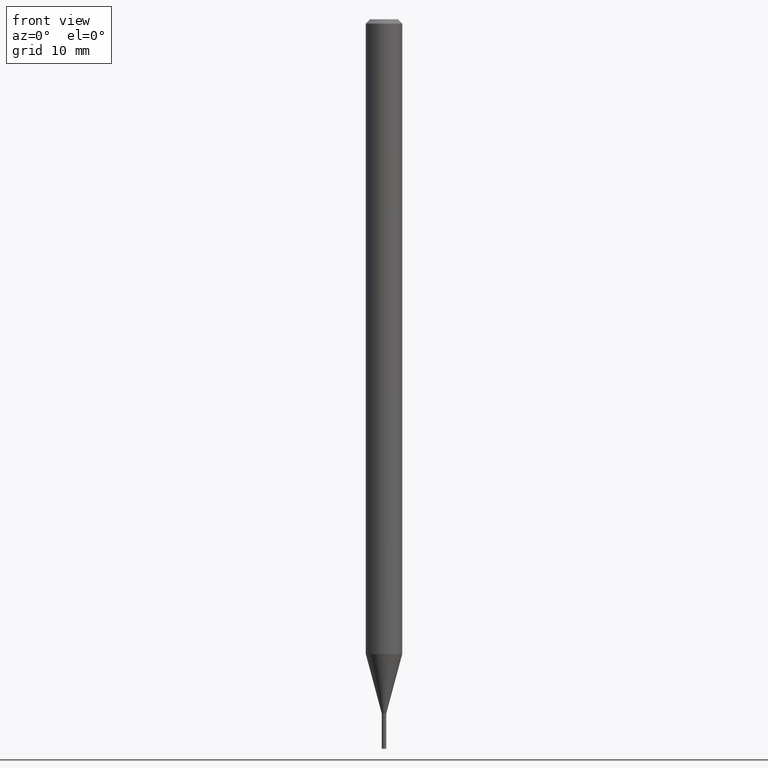
[diagram: clean part render]
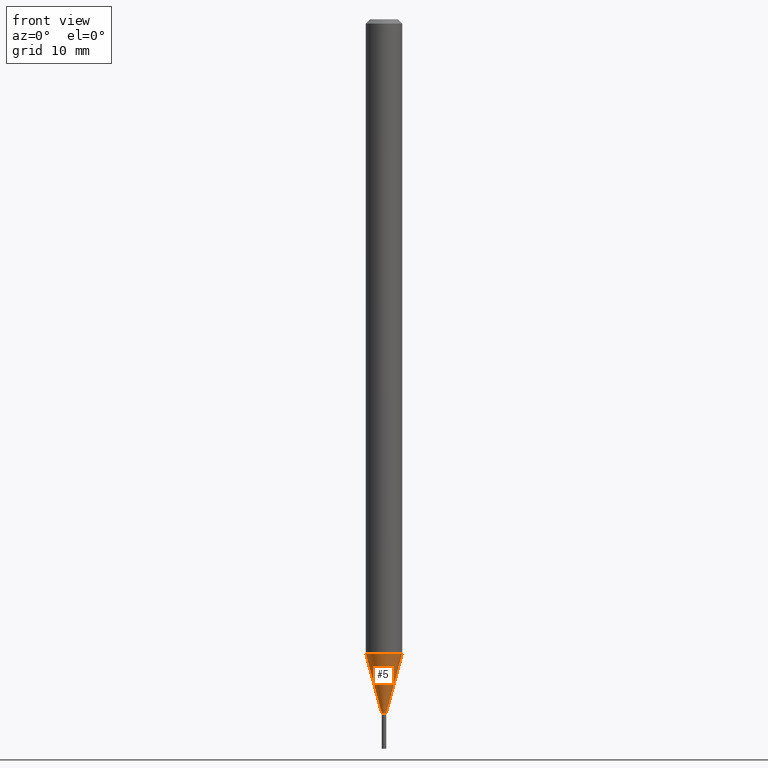
[diagram: same view with one face highlighted and labeled with its STEP entity id]
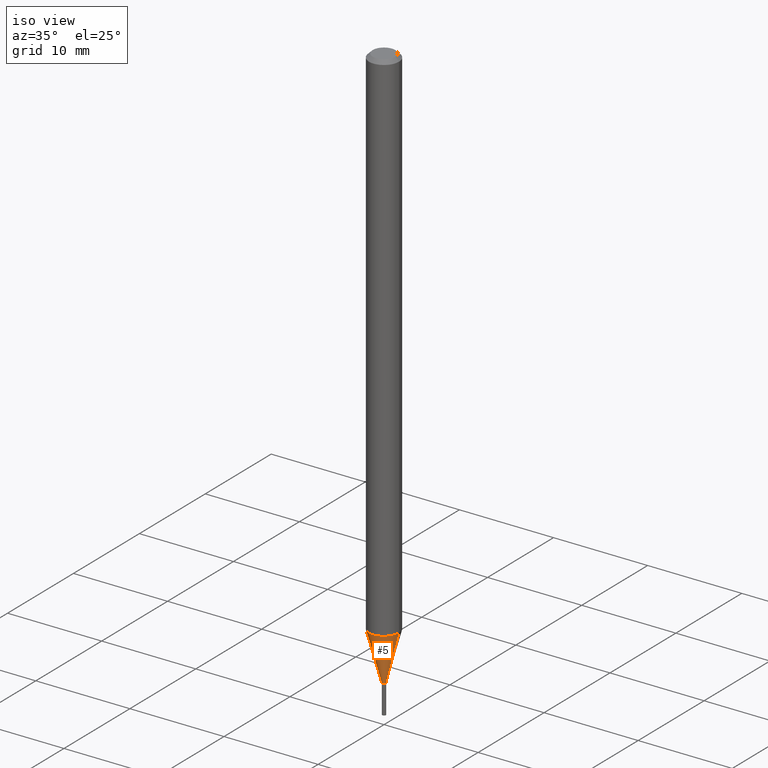
[diagram: same view with one face highlighted and labeled with its STEP entity id]
A machine part, front view. The second image highlights one B-rep face of the part: STEP entity #5.
A second angle (iso view) of the same face is appended — the face is thin or edge-on in the first view.
In plain terms, the highlighted conical surface has half-angle 15 deg.
Its self-contained STEP definition (entity closure, byte-faithful):
#5 = ADVANCED_FACE ( 'NONE', ( #184 ), #182, .T. ) ;
#6 = DIRECTION ( 'NONE',  ( 1.000000000000000000, -6.982962677686262766E-15, 0.000000000000000000 ) ) ;
#44 = DIRECTION ( 'NONE',  ( 1.000000000000000000, -6.982962677686216223E-15, 0.000000000000000000 ) ) ;
#48 = CIRCLE ( 'NONE', #61, 0.06250000000000000000 ) ;
#57 = ORIENTED_EDGE ( 'NONE', *, *, #211, .T. ) ;
#59 = CARTESIAN_POINT ( 'NONE',  ( -0.06249999999999999306, -7.148965160333359965E-15, -2.174737205583713084 ) ) ;
#61 = AXIS2_PLACEMENT_3D ( 'NONE', #246, #436, #6 ) ;
#64 = VERTEX_POINT ( 'NONE', #215 ) ;
#98 = DIRECTION ( 'NONE',  ( 0.2588190451025213501, 1.565188264969621968E-15, 0.9659258262890682012 ) ) ;
#126 = ORIENTED_EDGE ( 'NONE', *, *, #410, .F. ) ;
#129 = VECTOR ( 'NONE', #217, 39.37007874015747433 ) ;
#135 = DIRECTION ( 'NONE',  ( -2.445468806185136597E-29, 3.491481338843145583E-15, 1.000000000000000000 ) ) ;
#153 = AXIS2_PLACEMENT_3D ( 'NONE', #191, #160, #44 ) ;
#160 = DIRECTION ( 'NONE',  ( -2.445468806185136597E-29, 3.491481338843145583E-15, 1.000000000000000000 ) ) ;
#171 = EDGE_LOOP ( 'NONE', ( #296, #57, #270, #126 ) ) ;
#175 = CIRCLE ( 'NONE', #434, 0.007500000000000194011 ) ;
#179 = CARTESIAN_POINT ( 'NONE',  ( -0.007500000000000194011, -7.702700020799019370E-15, -2.379999999999999893 ) ) ;
#182 = CONICAL_SURFACE ( 'NONE', #153, 0.007500000000000194011, 0.2617993877991500740 ) ;
#184 = FACE_OUTER_BOUND ( 'NONE', #171, .T. ) ;
#191 = CARTESIAN_POINT ( 'NONE',  ( 5.820215758720625190E-29, -8.309725586446686731E-15, -2.379999999999999893 ) ) ;
#210 = CARTESIAN_POINT ( 'NONE',  ( 5.820215758720625190E-29, -8.309725586446686731E-15, -2.379999999999999893 ) ) ;
#211 = EDGE_CURVE ( 'NONE', #445, #355, #175, .T. ) ;
#215 = CARTESIAN_POINT ( 'NONE',  ( 0.06249999999999999306, -8.029489537538814251E-15, -2.174737205583713084 ) ) ;
#217 = DIRECTION ( 'NONE',  ( -0.2588190451025213501, 5.211531920934551042E-15, 0.9659258262890682012 ) ) ;
#242 = VERTEX_POINT ( 'NONE', #59 ) ;
#246 = CARTESIAN_POINT ( 'NONE',  ( 5.318251997905203025E-29, -7.593054370183424159E-15, -2.174737205583713084 ) ) ;
#259 = EDGE_CURVE ( 'NONE', #355, #64, #347, .T. ) ;
#267 = DIRECTION ( 'NONE',  ( 1.000000000000000000, -6.982962677686216223E-15, 0.000000000000000000 ) ) ;
#270 = ORIENTED_EDGE ( 'NONE', *, *, #259, .T. ) ;
#283 = LINE ( 'NONE', #284, #129 ) ;
#284 = CARTESIAN_POINT ( 'NONE',  ( -0.007500000000000194011, -8.256434881264677198E-15, -2.379999999999999893 ) ) ;
#287 = VECTOR ( 'NONE', #98, 39.37007874015747433 ) ;
#296 = ORIENTED_EDGE ( 'NONE', *, *, #359, .F. ) ;
#347 = LINE ( 'NONE', #377, #287 ) ;
#355 = VERTEX_POINT ( 'NONE', #362 ) ;
#359 = EDGE_CURVE ( 'NONE', #445, #242, #283, .T. ) ;
#362 = CARTESIAN_POINT ( 'NONE',  ( 0.007500000000000194011, -8.362097806529334994E-15, -2.379999999999999893 ) ) ;
#377 = CARTESIAN_POINT ( 'NONE',  ( 0.007500000000000194011, -8.362097806529334994E-15, -2.379999999999999893 ) ) ;
#410 = EDGE_CURVE ( 'NONE', #242, #64, #48, .T. ) ;
#434 = AXIS2_PLACEMENT_3D ( 'NONE', #210, #135, #267 ) ;
#436 = DIRECTION ( 'NONE',  ( -2.445468806185136597E-29, 3.491481338843145583E-15, 1.000000000000000000 ) ) ;
#445 = VERTEX_POINT ( 'NONE', #179 ) ;